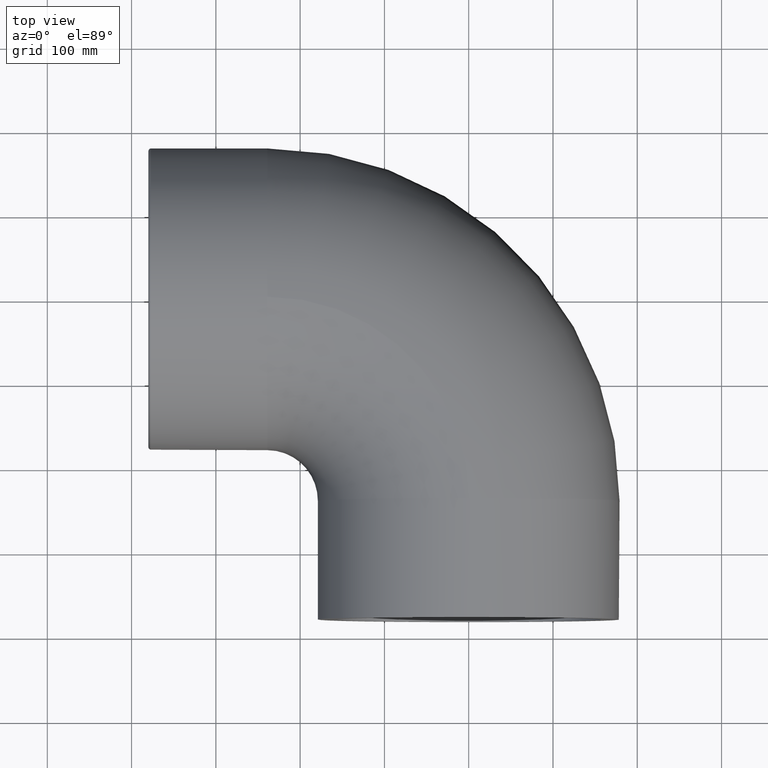
[diagram: clean part render]
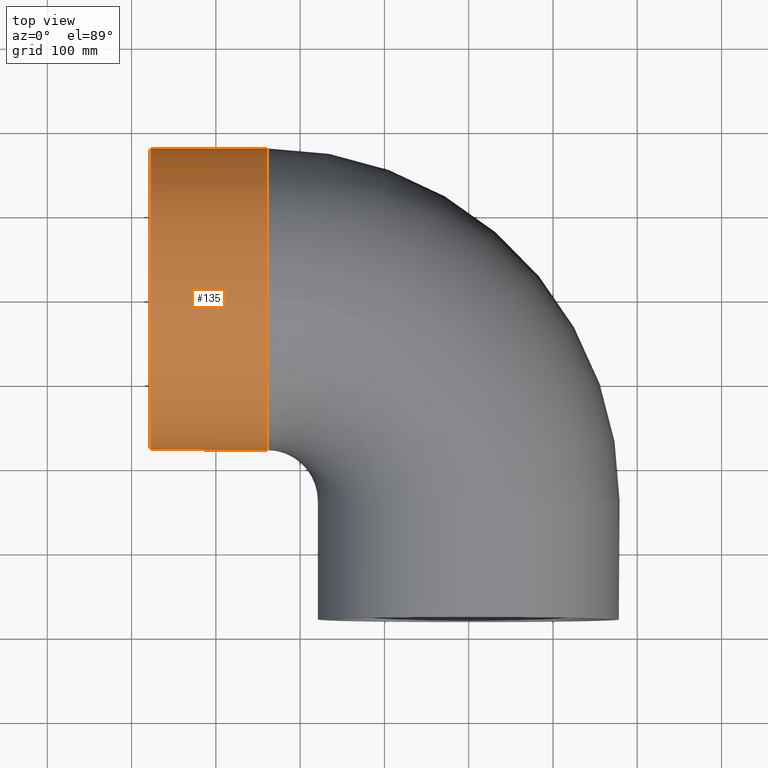
[diagram: same view with one face highlighted and labeled with its STEP entity id]
A machine part, top view. The second image highlights one B-rep face of the part: STEP entity #135.
In plain terms, the highlighted cylindrical surface (bore or boss wall) has radius 179 mm, axis along (1, 0, 0).
Its self-contained STEP definition (entity closure, byte-faithful):
#22=CYLINDRICAL_SURFACE('',#159,179.);
#33=FACE_BOUND('',#66,.T.);
#44=FACE_OUTER_BOUND('',#65,.T.);
#65=EDGE_LOOP('',(#120));
#66=EDGE_LOOP('',(#121));
#74=CIRCLE('',#151,179.);
#77=CIRCLE('',#157,179.);
#85=VERTEX_POINT('',#227);
#88=VERTEX_POINT('',#236);
#96=EDGE_CURVE('',#85,#85,#74,.T.);
#99=EDGE_CURVE('',#88,#88,#77,.T.);
#120=ORIENTED_EDGE('',*,*,#96,.F.);
#121=ORIENTED_EDGE('',*,*,#99,.F.);
#135=ADVANCED_FACE('',(#44,#33),#22,.T.);
#151=AXIS2_PLACEMENT_3D('',#228,#188,#189);
#157=AXIS2_PLACEMENT_3D('',#237,#200,#201);
#159=AXIS2_PLACEMENT_3D('',#239,#204,#205);
#188=DIRECTION('center_axis',(1.,0.,0.));
#189=DIRECTION('ref_axis',(0.,0.,-1.));
#200=DIRECTION('center_axis',(-1.,0.,0.));
#201=DIRECTION('ref_axis',(0.,-1.,1.83697019872103E-16));
#204=DIRECTION('center_axis',(1.,0.,0.));
#205=DIRECTION('ref_axis',(0.,1.,0.));
#227=CARTESIAN_POINT('',(-239.,-4.38423554094752E-14,-179.));
#228=CARTESIAN_POINT('Origin',(-239.,0.,0.));
#236=CARTESIAN_POINT('',(-376.85,179.,-5.48029442618441E-14));
#237=CARTESIAN_POINT('Origin',(-376.85,0.,0.));
#239=CARTESIAN_POINT('Origin',(-309.5,0.,0.));